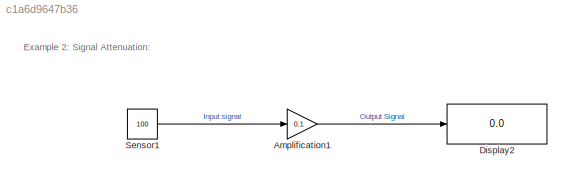
MODEL slx_c1a6d9647b36
KIND model
CONFIG AbsTol = auto
CONFIG EnableMultiTasking = off
CONFIG FixedStep = auto
CONFIG MaxStep = auto
CONFIG MinStep = auto
CONFIG RelTol = 1e-3
CONFIG SampleTimeConstraint = Unconstrained
CONFIG SolverName = VariableStepAuto
CONFIG StartTime = 0.0
CONFIG StopTime = 10.0
BLOCK [Gain] Amplification1
  Gain = 0.1
BLOCK [Display] Display2
  Decimation = 1
  Ports = [1]
BLOCK [Constant] Sensor1
  Value = 100
ANNOTATION (root): Example 2: Signal Attenuation:
LINE Amplification1:1 -> Display2:1
LINE Sensor1:1 -> Amplification1:1
